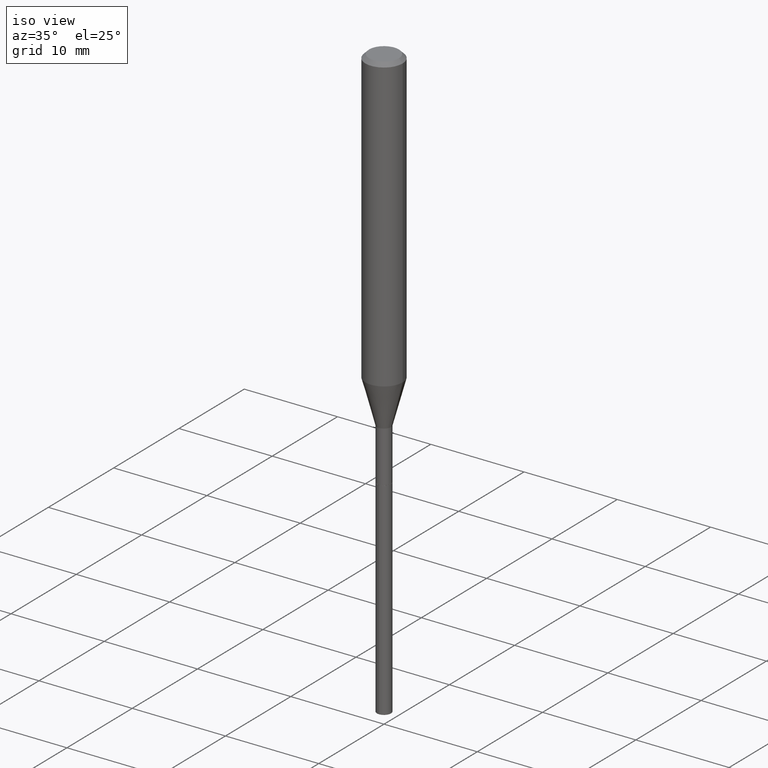
[diagram: clean part render]
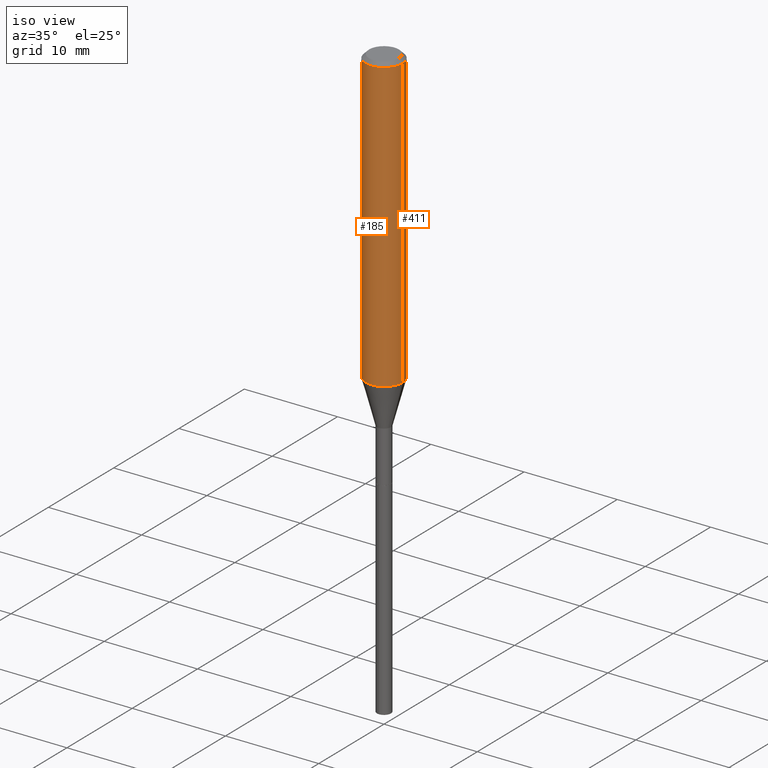
[diagram: same view with one multi-face feature highlighted, each face labeled with its STEP entity id]
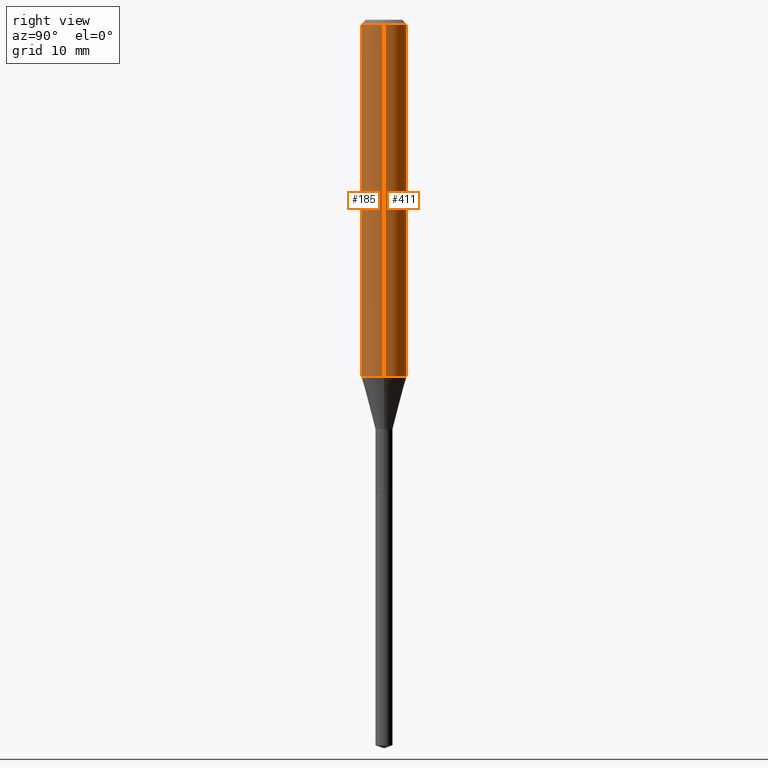
[diagram: same view with one multi-face feature highlighted, each face labeled with its STEP entity id]
A machine part, iso view. The highlighted faces form ONE feature: a constant-radius fillet chain: 2 tangent blend faces with common blend radius 2.0003 mm. The faces share edges in the B-rep.
A second angle (right view) of the same feature is appended — it is thin or edge-on in the first view.
Their STEP definitions:
[1] entity #411 (Cylinder):
#16 = LINE ( 'NONE', #160, #299 ) ;
#19 = CYLINDRICAL_SURFACE ( 'NONE', #406, 0.07875000000000008382 ) ;
#24 = DIRECTION ( 'NONE',  ( -2.445468806185136877E-29, 3.491481338843145188E-15, 1.000000000000000000 ) ) ;
#56 = ORIENTED_EDGE ( 'NONE', *, *, #418, .F. ) ;
#63 = CARTESIAN_POINT ( 'NONE',  ( 0.07875000000000000056, -6.048991419545733705E-16, -0.01575000000000010072 ) ) ;
#81 = AXIS2_PLACEMENT_3D ( 'NONE', #313, #243, #400 ) ;
#104 = CARTESIAN_POINT ( 'NONE',  ( 0.07875000000000015321, -4.853798352159471630E-15, -1.232683100267610854 ) ) ;
#152 = EDGE_LOOP ( 'NONE', ( #194, #382, #193, #56 ) ) ;
#157 = CIRCLE ( 'NONE', #81, 0.07875000000000000056 ) ;
#160 = CARTESIAN_POINT ( 'NONE',  ( -0.07875000000000008382, 5.595524044110794920E-16, -3.873661383575742696E-30 ) ) ;
#172 = CARTESIAN_POINT ( 'NONE',  ( 0.07875000000000008382, -5.499083108677941345E-16, 3.839989210939303220E-30 ) ) ;
#193 = ORIENTED_EDGE ( 'NONE', *, *, #464, .F. ) ;
#194 = ORIENTED_EDGE ( 'NONE', *, *, #368, .T. ) ;
#210 = CARTESIAN_POINT ( 'NONE',  ( -0.07875000000000000056, -1.619888031778148233E-15, -0.01575000000000010072 ) ) ;
#222 = VECTOR ( 'NONE', #24, 39.37007874015748143 ) ;
#243 = DIRECTION ( 'NONE',  ( -2.445468806185136597E-29, 3.491481338843145583E-15, 1.000000000000000000 ) ) ;
#275 = CARTESIAN_POINT ( 'NONE',  ( 3.014488069616027069E-29, -4.303890041291677495E-15, -1.232683100267610854 ) ) ;
#281 = DIRECTION ( 'NONE',  ( -2.445468806185136597E-29, 3.491481338843145583E-15, 1.000000000000000000 ) ) ;
#288 = DIRECTION ( 'NONE',  ( -2.445468806185136877E-29, 3.491481338843145188E-15, 1.000000000000000000 ) ) ;
#299 = VECTOR ( 'NONE', #288, 39.37007874015748143 ) ;
#309 = VERTEX_POINT ( 'NONE', #104 ) ;
#313 = CARTESIAN_POINT ( 'NONE',  ( 3.851613369741614799E-31, -5.499083108677989540E-17, -0.01575000000000010072 ) ) ;
#316 = DIRECTION ( 'NONE',  ( 1.000000000000000000, -6.982962677686261189E-15, 0.000000000000000000 ) ) ;
#320 = LINE ( 'NONE', #172, #222 ) ;
#348 = AXIS2_PLACEMENT_3D ( 'NONE', #275, #281, #316 ) ;
#349 = DIRECTION ( 'NONE',  ( -2.445468806185136597E-29, 3.491481338843145583E-15, 1.000000000000000000 ) ) ;
#358 = EDGE_CURVE ( 'NONE', #458, #461, #16, .T. ) ;
#368 = EDGE_CURVE ( 'NONE', #309, #458, #432, .T. ) ;
#382 = ORIENTED_EDGE ( 'NONE', *, *, #358, .T. ) ;
#384 = CARTESIAN_POINT ( 'NONE',  ( -0.07875000000000015321, -3.744337636880597116E-15, -1.232683100267610854 ) ) ;
#395 = CARTESIAN_POINT ( 'NONE',  ( 0.000000000000000000, 0.000000000000000000, 0.000000000000000000 ) ) ;
#400 = DIRECTION ( 'NONE',  ( 1.000000000000000000, -6.982962677686265922E-15, 0.000000000000000000 ) ) ;
#406 = AXIS2_PLACEMENT_3D ( 'NONE', #395, #349, #428 ) ;
#411 = ADVANCED_FACE ( 'NONE', ( #438 ), #19, .T. ) ;
#418 = EDGE_CURVE ( 'NONE', #309, #457, #320, .T. ) ;
#428 = DIRECTION ( 'NONE',  ( 1.000000000000000000, -6.982962677686267499E-15, 4.876176775795935232E-29 ) ) ;
#432 = CIRCLE ( 'NONE', #348, 0.07875000000000015321 ) ;
#438 = FACE_OUTER_BOUND ( 'NONE', #152, .T. ) ;
#457 = VERTEX_POINT ( 'NONE', #63 ) ;
#458 = VERTEX_POINT ( 'NONE', #384 ) ;
#461 = VERTEX_POINT ( 'NONE', #210 ) ;
#464 = EDGE_CURVE ( 'NONE', #457, #461, #157, .T. ) ;
[2] entity #185 (Cylinder):
#16 = LINE ( 'NONE', #160, #299 ) ;
#23 = AXIS2_PLACEMENT_3D ( 'NONE', #293, #483, #102 ) ;
#24 = DIRECTION ( 'NONE',  ( -2.445468806185136877E-29, 3.491481338843145188E-15, 1.000000000000000000 ) ) ;
#27 = DIRECTION ( 'NONE',  ( -2.445468806185136597E-29, 3.491481338843145583E-15, 1.000000000000000000 ) ) ;
#54 = CARTESIAN_POINT ( 'NONE',  ( 0.000000000000000000, 0.000000000000000000, 0.000000000000000000 ) ) ;
#63 = CARTESIAN_POINT ( 'NONE',  ( 0.07875000000000000056, -6.048991419545733705E-16, -0.01575000000000010072 ) ) ;
#69 = AXIS2_PLACEMENT_3D ( 'NONE', #254, #27, #391 ) ;
#90 = ORIENTED_EDGE ( 'NONE', *, *, #301, .F. ) ;
#99 = CIRCLE ( 'NONE', #23, 0.07875000000000000056 ) ;
#102 = DIRECTION ( 'NONE',  ( 1.000000000000000000, -6.982962677686265922E-15, 0.000000000000000000 ) ) ;
#104 = CARTESIAN_POINT ( 'NONE',  ( 0.07875000000000015321, -4.853798352159471630E-15, -1.232683100267610854 ) ) ;
#141 = CIRCLE ( 'NONE', #69, 0.07875000000000015321 ) ;
#148 = EDGE_CURVE ( 'NONE', #458, #309, #141, .T. ) ;
#154 = ORIENTED_EDGE ( 'NONE', *, *, #148, .T. ) ;
#160 = CARTESIAN_POINT ( 'NONE',  ( -0.07875000000000008382, 5.595524044110794920E-16, -3.873661383575742696E-30 ) ) ;
#162 = CYLINDRICAL_SURFACE ( 'NONE', #167, 0.07875000000000008382 ) ;
#167 = AXIS2_PLACEMENT_3D ( 'NONE', #54, #284, #387 ) ;
#172 = CARTESIAN_POINT ( 'NONE',  ( 0.07875000000000008382, -5.499083108677941345E-16, 3.839989210939303220E-30 ) ) ;
#185 = ADVANCED_FACE ( 'NONE', ( #353 ), #162, .T. ) ;
#210 = CARTESIAN_POINT ( 'NONE',  ( -0.07875000000000000056, -1.619888031778148233E-15, -0.01575000000000010072 ) ) ;
#222 = VECTOR ( 'NONE', #24, 39.37007874015748143 ) ;
#244 = ORIENTED_EDGE ( 'NONE', *, *, #418, .T. ) ;
#254 = CARTESIAN_POINT ( 'NONE',  ( 3.014488069616027069E-29, -4.303890041291677495E-15, -1.232683100267610854 ) ) ;
#284 = DIRECTION ( 'NONE',  ( -2.445468806185136597E-29, 3.491481338843145583E-15, 1.000000000000000000 ) ) ;
#288 = DIRECTION ( 'NONE',  ( -2.445468806185136877E-29, 3.491481338843145188E-15, 1.000000000000000000 ) ) ;
#293 = CARTESIAN_POINT ( 'NONE',  ( 3.851613369741614799E-31, -5.499083108677989540E-17, -0.01575000000000010072 ) ) ;
#299 = VECTOR ( 'NONE', #288, 39.37007874015748143 ) ;
#301 = EDGE_CURVE ( 'NONE', #461, #457, #99, .T. ) ;
#306 = ORIENTED_EDGE ( 'NONE', *, *, #358, .F. ) ;
#309 = VERTEX_POINT ( 'NONE', #104 ) ;
#310 = EDGE_LOOP ( 'NONE', ( #306, #154, #244, #90 ) ) ;
#320 = LINE ( 'NONE', #172, #222 ) ;
#353 = FACE_OUTER_BOUND ( 'NONE', #310, .T. ) ;
#358 = EDGE_CURVE ( 'NONE', #458, #461, #16, .T. ) ;
#384 = CARTESIAN_POINT ( 'NONE',  ( -0.07875000000000015321, -3.744337636880597116E-15, -1.232683100267610854 ) ) ;
#387 = DIRECTION ( 'NONE',  ( 1.000000000000000000, -6.982962677686267499E-15, 4.876176775795935232E-29 ) ) ;
#391 = DIRECTION ( 'NONE',  ( 1.000000000000000000, -6.982962677686261189E-15, 0.000000000000000000 ) ) ;
#418 = EDGE_CURVE ( 'NONE', #309, #457, #320, .T. ) ;
#457 = VERTEX_POINT ( 'NONE', #63 ) ;
#458 = VERTEX_POINT ( 'NONE', #384 ) ;
#461 = VERTEX_POINT ( 'NONE', #210 ) ;
#483 = DIRECTION ( 'NONE',  ( -2.445468806185136597E-29, 3.491481338843145583E-15, 1.000000000000000000 ) ) ;